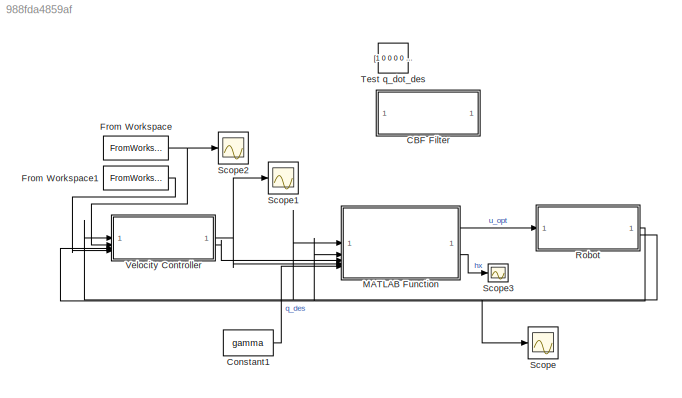
MODEL slx_988fda4859af
KIND model
CONFIG AbsTol = auto
CONFIG EnableMultiTasking = off
CONFIG FixedStep = Ts
CONFIG MaxStep = auto
CONFIG MinStep = auto
CONFIG RelTol = 1e-3
CONFIG SampleTimeConstraint = Unconstrained
CONFIG SolverName = FixedStepAuto
CONFIG StartTime = 0.0
CONFIG StopTime = Tf
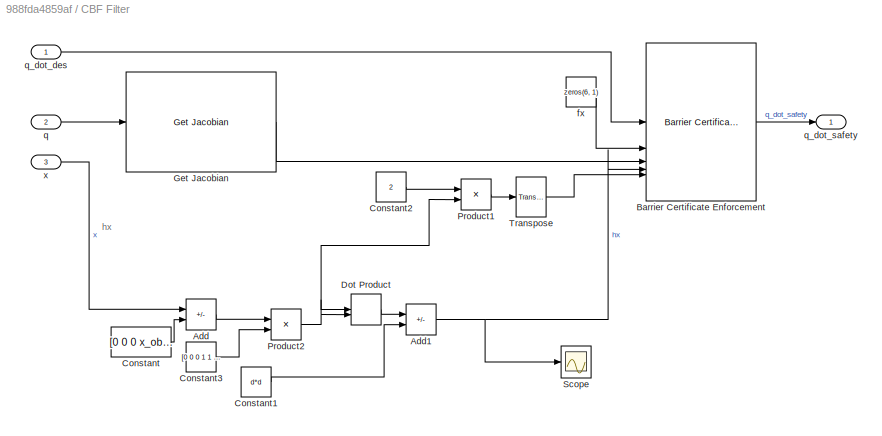
BLOCK [SubSystem] CBF Filter
  Commented = on
BLOCK [Sum] CBF Filter/Add
  IconShape = rectangular
  Inputs = +-
BLOCK [Sum] CBF Filter/Add1
  IconShape = rectangular
  Inputs = +-
BLOCK [Reference] CBF Filter/Barrier Certificate Enforcement  REF=slctrl_constraint/Barrier Certificate Enforcement
  LibrarySourceBlock = slctrlblks/Constraint Control/Barrier Certificate Enforcement
  SourceBlock = slctrl_constraint/Barrier Certificate Enforcement
  SourceType = Barrier Certificate Enforcement
BLOCK [Constant] CBF Filter/Constant
  Value = [0 0 0 x_obs]
BLOCK [Constant] CBF Filter/Constant1
  Value = d*d
BLOCK [Constant] CBF Filter/Constant2
  Value = 2
BLOCK [Constant] CBF Filter/Constant3
  Value = [0 0 0 1 1 1]
BLOCK [DotProduct] CBF Filter/Dot Product
  OutDataTypeStr = Inherit: Inherit via internal rule
BLOCK [Reference] CBF Filter/Get Jacobian  REF=robotmaniplib/Get Jacobian
  SourceBlock = robotmaniplib/Get Jacobian
  SourceType = Get Jacobian
BLOCK [Product] CBF Filter/Product1
BLOCK [Product] CBF Filter/Product2
BLOCK [Scope] CBF Filter/Scope
  Floating = off
  NumInputPorts = 1
  ScopeSpecificationString = Simulink.scopes.TimeScopeBlockCfg('CurrentConfiguration', extmgr.ConfigurationSet(extmgr.Configuration('Core','General UI',true),extmgr.Configuration('Core','Source UI',true),extmgr.Configuration('Sources','WiredSimulink',true,'DataLoggingVariableName','ScopeData1'),extmgr.Configuration('Visuals','Time Domain',true,'SerializedDisplays',{struct('MinYLimReal','-0.02363','MaxYLimReal','0.17328','YLab...<+1450ch>
BLOCK [Reference] CBF Filter/Transpose  REF=matrix_library/Transpose
  LibrarySourceBlock = simulink/Matrix\nOperations/Transpose
  SourceBlock = matrix_library/Transpose
  SourceType = Transpose
BLOCK [Constant] CBF Filter/fx
  Value = zeros(6, 1)
BLOCK [Inport] CBF Filter/q
  Port = 2
BLOCK [Inport] CBF Filter/q_dot_des
BLOCK [Outport] CBF Filter/q_dot_safety
BLOCK [Inport] CBF Filter/x
  Port = 3
BLOCK [Constant] Constant1
  Value = gamma
BLOCK [FromWorkspace] From Workspace
  Interpolate = off
  OutputAfterFinalValue = Holding final value
  VariableName = wayPointsData
BLOCK [FromWorkspace] From Workspace1
  Interpolate = off
  OutputAfterFinalValue = Holding final value
  VariableName = velocityData
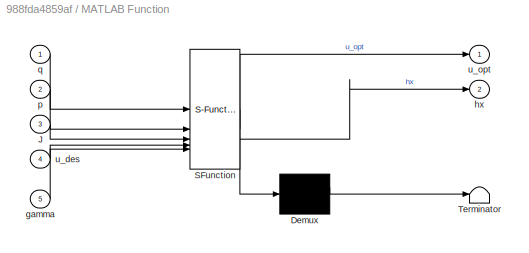
BLOCK [SubSystem] MATLAB Function
  ErrorFcn = Stateflow.Translate.translate
  PermitHierarchicalResolution = ExplicitOnly
  SFBlockType = MATLAB Function
  TreatAsAtomicUnit = on
BLOCK [Demux] MATLAB Function/ Demux 
  Outputs = 1
BLOCK [S-Function] MATLAB Function/ SFunction 
  EnableBusSupport = on
  FunctionName = sf_sfun
  PortCounts = [5 3]
  SFcnIsStateOwnerBlock = off
  SFunctionDeploymentMode = off
  Tag = Stateflow S-Function 2
BLOCK [Terminator] MATLAB Function/ Terminator 
BLOCK [Inport] MATLAB Function/J
  Port = 3
BLOCK [Inport] MATLAB Function/gamma
  Port = 5
BLOCK [Outport] MATLAB Function/hx
  Port = 2
BLOCK [Inport] MATLAB Function/p
  Port = 2
BLOCK [Inport] MATLAB Function/q
BLOCK [Inport] MATLAB Function/u_des
  Port = 4
BLOCK [Outport] MATLAB Function/u_opt
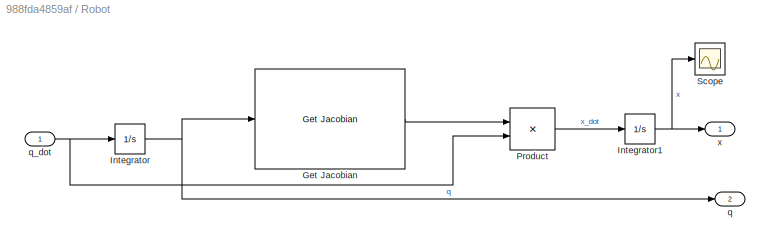
BLOCK [SubSystem] Robot
BLOCK [Reference] Robot/Get Jacobian  REF=robotmaniplib/Get Jacobian
  SourceBlock = robotmaniplib/Get Jacobian
  SourceType = Get Jacobian
BLOCK [Integrator] Robot/Integrator
  InitialCondition = config
BLOCK [Integrator] Robot/Integrator1
  InitialCondition = [InitAng, InitPos]'
BLOCK [Product] Robot/Product
  Multiplication = Matrix(*)
BLOCK [Scope] Robot/Scope
  Floating = off
  NumInputPorts = 1
  ScopeSpecificationString = Simulink.scopes.TimeScopeBlockCfg('CurrentConfiguration', extmgr.ConfigurationSet(extmgr.Configuration('Core','General UI',true),extmgr.Configuration('Core','Source UI',true),extmgr.Configuration('Sources','WiredSimulink',true,'DataLoggingVariableName','ScopeData3'),extmgr.Configuration('Visuals','Time Domain',true,'SerializedDisplays',{struct('MinYLimReal','-1.67075','MaxYLimReal','11.29675','YLa...<+1512ch>
BLOCK [Outport] Robot/q
  Port = 2
BLOCK [Inport] Robot/q_dot
BLOCK [Outport] Robot/x
BLOCK [Scope] Scope
  Floating = off
  NumInputPorts = 1
  ScopeSpecificationString = Simulink.scopes.TimeScopeBlockCfg('CurrentConfiguration', extmgr.ConfigurationSet(extmgr.Configuration('Core','General UI',true),extmgr.Configuration('Core','Source UI',true),extmgr.Configuration('Sources','WiredSimulink',true),extmgr.Configuration('Visuals','Time Domain',true,'SerializedDisplays',{struct('MinYLimReal','-2.36606','MaxYLimReal','2.16307','YLabelReal','','MinYLimMag','0.00000','MaxY...<+1437ch>
BLOCK [Scope] Scope1
  Floating = off
  NumInputPorts = 1
  ScopeSpecificationString = Simulink.scopes.TimeScopeBlockCfg('CurrentConfiguration', extmgr.ConfigurationSet(extmgr.Configuration('Core','General UI',true),extmgr.Configuration('Core','Source UI',true),extmgr.Configuration('Sources','WiredSimulink',true,'DataLoggingVariableName','ScopeData1'),extmgr.Configuration('Visuals','Time Domain',true,'SerializedDisplays',{struct('MinYLimReal','-1.11815','MaxYLimReal','0.98644','YLab...<+1671ch>
BLOCK [Scope] Scope2
  Floating = off
  NumInputPorts = 1
  ScopeSpecificationString = Simulink.scopes.TimeScopeBlockCfg('CurrentConfiguration', extmgr.ConfigurationSet(extmgr.Configuration('Core','General UI',true),extmgr.Configuration('Core','Source UI',true),extmgr.Configuration('Sources','WiredSimulink',true,'DataLoggingVariableName','ScopeData1'),extmgr.Configuration('Visuals','Time Domain',true,'SerializedDisplays',{struct('MinYLimReal','-3.58429','MaxYLimReal','0.8427','YLabe...<+1474ch>
BLOCK [Scope] Scope3
  Floating = off
  NumInputPorts = 1
  ScopeSpecificationString = Simulink.scopes.TimeScopeBlockCfg('CurrentConfiguration', extmgr.ConfigurationSet(extmgr.Configuration('Core','General UI',true),extmgr.Configuration('Core','Source UI',true),extmgr.Configuration('Sources','WiredSimulink',true,'DataLoggingVariableName','ScopeData1'),extmgr.Configuration('Visuals','Time Domain',true,'SerializedDisplays',{struct('MinYLimReal','-2.36606','MaxYLimReal','2.16307','YLab...<+1545ch>
BLOCK [Constant] Test q_dot_des
  Commented = on
  Value = [1 0 0 0 0 0]
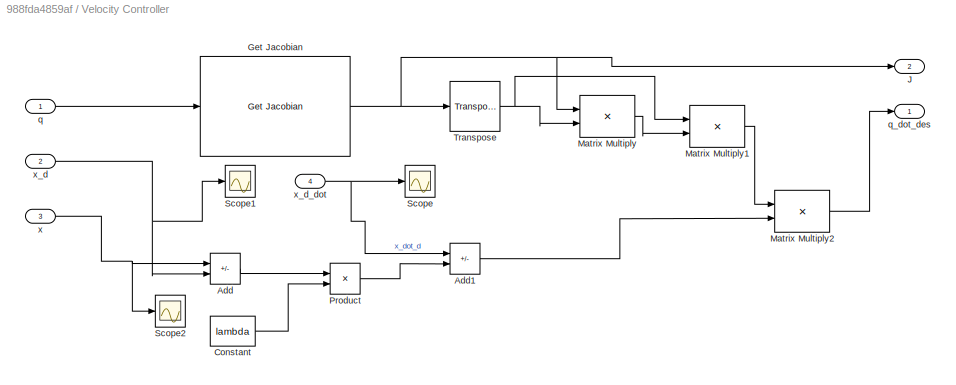
BLOCK [SubSystem] Velocity Controller
BLOCK [Sum] Velocity Controller/Add
  IconShape = rectangular
  Inputs = +-
BLOCK [Sum] Velocity Controller/Add1
  IconShape = rectangular
  Inputs = +-
BLOCK [Constant] Velocity Controller/Constant
  Value = lambda
BLOCK [Reference] Velocity Controller/Get Jacobian  REF=robotmaniplib/Get Jacobian
  SourceBlock = robotmaniplib/Get Jacobian
  SourceType = Get Jacobian
BLOCK [Outport] Velocity Controller/J
  Port = 2
BLOCK [Product] Velocity Controller/Matrix Multiply
  Multiplication = Matrix(*)
BLOCK [Product] Velocity Controller/Matrix Multiply1
  Inputs = */
  Multiplication = Matrix(*)
BLOCK [Product] Velocity Controller/Matrix Multiply2
  Multiplication = Matrix(*)
BLOCK [Product] Velocity Controller/Product
BLOCK [Scope] Velocity Controller/Scope
  Floating = off
  NumInputPorts = 1
  ScopeSpecificationString = Simulink.scopes.TimeScopeBlockCfg('CurrentConfiguration', extmgr.ConfigurationSet(extmgr.Configuration('Core','General UI',true),extmgr.Configuration('Core','Source UI',true),extmgr.Configuration('Sources','WiredSimulink',true,'DataLoggingVariableName','ScopeData1'),extmgr.Configuration('Visuals','Time Domain',true,'SerializedDisplays',{struct('MinYLimReal','-0.18047','MaxYLimReal','0.12773','YLab...<+1564ch>
BLOCK [Scope] Velocity Controller/Scope1
  Floating = off
  NumInputPorts = 1
  ScopeSpecificationString = Simulink.scopes.TimeScopeBlockCfg('CurrentConfiguration', extmgr.ConfigurationSet(extmgr.Configuration('Core','General UI',true),extmgr.Configuration('Core','Source UI',true),extmgr.Configuration('Sources','WiredSimulink',true,'DataLoggingVariableName','ScopeData2'),extmgr.Configuration('Visuals','Time Domain',true,'SerializedDisplays',{struct('MinYLimReal','-3.59678','MaxYLimReal','0.95509','YLab...<+1539ch>
BLOCK [Scope] Velocity Controller/Scope2
  Floating = off
  NumInputPorts = 1
  ScopeSpecificationString = Simulink.scopes.TimeScopeBlockCfg('CurrentConfiguration', extmgr.ConfigurationSet(extmgr.Configuration('Core','General UI',true),extmgr.Configuration('Core','Source UI',true),extmgr.Configuration('Sources','WiredSimulink',true,'DataLoggingVariableName','ScopeData3'),extmgr.Configuration('Visuals','Time Domain',true,'SerializedDisplays',{struct('MinYLimReal','-3.72203','MaxYLimReal','2.08237','YLab...<+1527ch>
BLOCK [Reference] Velocity Controller/Transpose  REF=matrix_library/Transpose
  LibrarySourceBlock = simulink/Matrix\nOperations/Transpose
  SourceBlock = matrix_library/Transpose
  SourceType = Transpose
BLOCK [Inport] Velocity Controller/q
BLOCK [Outport] Velocity Controller/q_dot_des
BLOCK [Inport] Velocity Controller/x
  Port = 3
BLOCK [Inport] Velocity Controller/x_d
  Port = 2
BLOCK [Inport] Velocity Controller/x_d_dot
  Port = 4
ANNOTATION CBF Filter: hx
NET CBF Filter/Add1:1 -> CBF Filter/Barrier Certificate Enforcement:4, CBF Filter/Scope:1
LINE CBF Filter/Add:1 -> CBF Filter/Product2:1
LINE CBF Filter/Barrier Certificate Enforcement:1 -> CBF Filter/q_dot_safety:1
LINE CBF Filter/Constant1:1 -> CBF Filter/Add1:2
LINE CBF Filter/Constant2:1 -> CBF Filter/Product1:1
LINE CBF Filter/Constant3:1 -> CBF Filter/Product2:2
LINE CBF Filter/Constant:1 -> CBF Filter/Add:2
LINE CBF Filter/Dot Product:1 -> CBF Filter/Add1:1
LINE CBF Filter/Get Jacobian:1 -> CBF Filter/Barrier Certificate Enforcement:3
LINE CBF Filter/Product1:1 -> CBF Filter/Transpose:1
NET CBF Filter/Product2:1 -> CBF Filter/Dot Product:1, CBF Filter/Dot Product:2, CBF Filter/Product1:2
LINE CBF Filter/Transpose:1 -> CBF Filter/Barrier Certificate Enforcement:5
LINE CBF Filter/fx:1 -> CBF Filter/Barrier Certificate Enforcement:2
LINE CBF Filter/q:1 -> CBF Filter/Get Jacobian:1
LINE CBF Filter/q_dot_des:1 -> CBF Filter/Barrier Certificate Enforcement:1
LINE CBF Filter/x:1 -> CBF Filter/Add:1
LINE Constant1:1 -> MATLAB Function:5
LINE From Workspace1:1 -> Velocity Controller:4
NET From Workspace:1 -> Scope2:1, Velocity Controller:2
LINE MATLAB Function:1 -> Robot:1
LINE MATLAB Function:2 -> Scope3:1
LINE Robot/Get Jacobian:1 -> Robot/Product:1
NET Robot/Integrator1:1 -> Robot/Scope:1, Robot/x:1
NET Robot/Integrator:1 -> Robot/Get Jacobian:1, Robot/q:1
LINE Robot/Product:1 -> Robot/Integrator1:1
NET Robot/q_dot:1 -> Robot/Integrator:1, Robot/Product:2
NET Robot:1 -> MATLAB Function:2, Velocity Controller:3
NET Robot:2 -> MATLAB Function:1, Scope:1, Velocity Controller:1
LINE Velocity Controller/Add1:1 -> Velocity Controller/Matrix Multiply2:2
LINE Velocity Controller/Add:1 -> Velocity Controller/Product:1
LINE Velocity Controller/Constant:1 -> Velocity Controller/Product:2
NET Velocity Controller/Get Jacobian:1 -> Velocity Controller/J:1, Velocity Controller/Matrix Multiply:1, Velocity Controller/Transpose:1
LINE Velocity Controller/Matrix Multiply1:1 -> Velocity Controller/Matrix Multiply2:1
LINE Velocity Controller/Matrix Multiply2:1 -> Velocity Controller/q_dot_des:1
LINE Velocity Controller/Matrix Multiply:1 -> Velocity Controller/Matrix Multiply1:2
LINE Velocity Controller/Product:1 -> Velocity Controller/Add1:2
NET Velocity Controller/Transpose:1 -> Velocity Controller/Matrix Multiply1:1, Velocity Controller/Matrix Multiply:2
LINE Velocity Controller/q:1 -> Velocity Controller/Get Jacobian:1
NET Velocity Controller/x:1 -> Velocity Controller/Add:1, Velocity Controller/Scope2:1
NET Velocity Controller/x_d:1 -> Velocity Controller/Add:2, Velocity Controller/Scope1:1
NET Velocity Controller/x_d_dot:1 -> Velocity Controller/Add1:1, Velocity Controller/Scope:1
NET Velocity Controller:1 -> MATLAB Function:4, Scope1:1
LINE Velocity Controller:2 -> MATLAB Function:3
note: NET lines group one-source signal fan-out (src -> all destinations, sorted); 1:1 wires keep LINE
CHART MATLAB Function states=1 transitions=1
  STATE_LABEL 'eML_blk_kernel()'
  STATE_LABEL "SCRIPT:\nfunction [u_opt, hx]  = CBF_solver(q, p, J, u_des, gamma)\n\n    u_opt = double([0 0 0 0 0 0]');\n    hx = double(0);\n\n    p_obs = [0 0.45 0.2]'; % Position of the obstacle\n    R = 0.15; % Radious of the obstacle\n    R_w = 0.05; % Radious of the wrist of robot\n\n    coder.extrinsic('py.KinematicControl_CBF_cvxpy.manipulator_cbf');\n\n\n    result = py.KinematicControl_CBF_cvxpy.manipulator_cbf(q,...<+108ch>"
CHART  states=0 transitions=0
